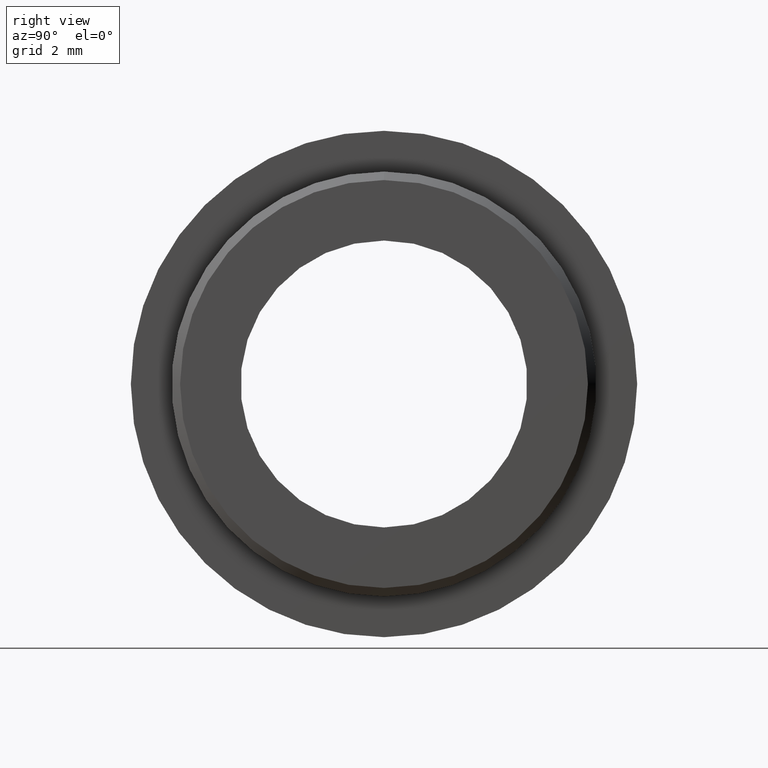
[diagram: clean part render]
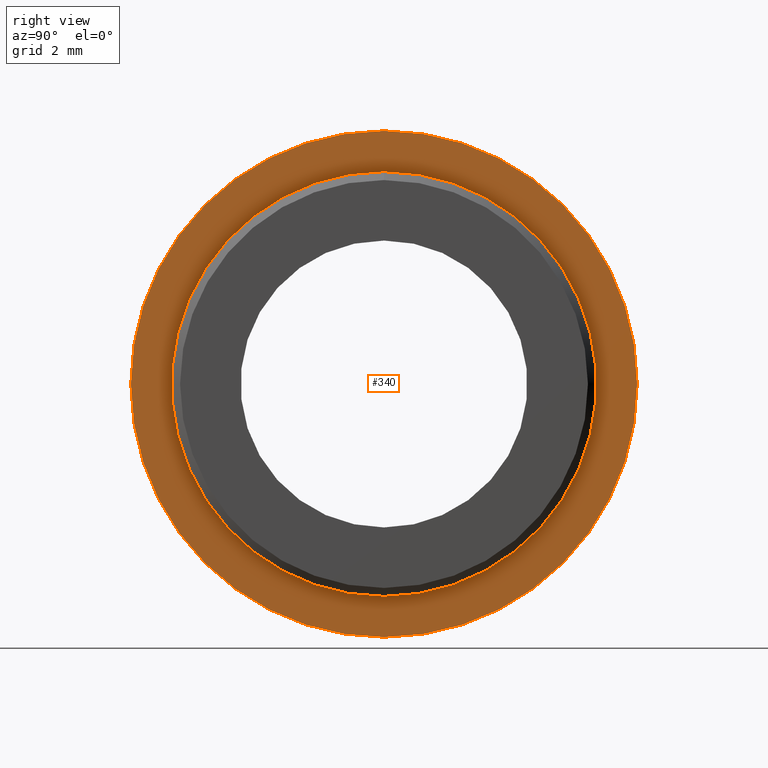
[diagram: same view with one face highlighted and labeled with its STEP entity id]
A machine part, right view. The second image highlights one B-rep face of the part: STEP entity #340.
In plain terms, the highlighted planar face has unit normal (1, 0, 0).
Its self-contained STEP definition (entity closure, byte-faithful):
#2 = EDGE_CURVE ( 'NONE', #653, #156, #154, .T. ) ;
#5 = CARTESIAN_POINT ( 'NONE',  ( 4.000000000000000000, 0.0000000000000000000, 0.0000000000000000000 ) ) ;
#31 = EDGE_CURVE ( 'NONE', #156, #653, #467, .T. ) ;
#45 = CARTESIAN_POINT ( 'NONE',  ( 4.000000000000000000, 0.0000000000000000000, 0.0000000000000000000 ) ) ;
#92 = AXIS2_PLACEMENT_3D ( 'NONE', #5, #392, #226 ) ;
#98 = ORIENTED_EDGE ( 'NONE', *, *, #2, .T. ) ;
#104 = CIRCLE ( 'NONE', #608, 7.500000000000000000 ) ;
#119 = ORIENTED_EDGE ( 'NONE', *, *, #602, .F. ) ;
#124 = CARTESIAN_POINT ( 'NONE',  ( 4.000000000000000000, 9.184850993605147900E-016, -7.500000000000000000 ) ) ;
#145 = DIRECTION ( 'NONE',  ( 0.0000000000000000000, 0.0000000000000000000, -1.000000000000000000 ) ) ;
#154 = CIRCLE ( 'NONE', #224, 9.000000000000000000 ) ;
#156 = VERTEX_POINT ( 'NONE', #177 ) ;
#157 = DIRECTION ( 'NONE',  ( 1.000000000000000000, 0.0000000000000000000, 0.0000000000000000000 ) ) ;
#161 = DIRECTION ( 'NONE',  ( 0.0000000000000000000, 0.0000000000000000000, -1.000000000000000000 ) ) ;
#177 = CARTESIAN_POINT ( 'NONE',  ( 4.000000000000000000, 0.0000000000000000000, 9.000000000000000000 ) ) ;
#190 = CARTESIAN_POINT ( 'NONE',  ( 4.000000000000000000, 0.0000000000000000000, 7.500000000000000000 ) ) ;
#224 = AXIS2_PLACEMENT_3D ( 'NONE', #609, #319, #145 ) ;
#226 = DIRECTION ( 'NONE',  ( 0.0000000000000000000, 0.0000000000000000000, -1.000000000000000000 ) ) ;
#260 = AXIS2_PLACEMENT_3D ( 'NONE', #378, #426, #616 ) ;
#271 = DIRECTION ( 'NONE',  ( 0.0000000000000000000, 0.0000000000000000000, -1.000000000000000000 ) ) ;
#274 = CARTESIAN_POINT ( 'NONE',  ( 4.000000000000000000, 0.0000000000000000000, 0.0000000000000000000 ) ) ;
#300 = FACE_OUTER_BOUND ( 'NONE', #447, .T. ) ;
#319 = DIRECTION ( 'NONE',  ( 1.000000000000000000, 0.0000000000000000000, 0.0000000000000000000 ) ) ;
#334 = CIRCLE ( 'NONE', #412, 7.500000000000000000 ) ;
#340 = ADVANCED_FACE ( 'NONE', ( #505, #300 ), #363, .T. ) ;
#363 = PLANE ( 'NONE',  #92 ) ;
#378 = CARTESIAN_POINT ( 'NONE',  ( 4.000000000000000000, 0.0000000000000000000, 0.0000000000000000000 ) ) ;
#392 = DIRECTION ( 'NONE',  ( 1.000000000000000000, 0.0000000000000000000, 0.0000000000000000000 ) ) ;
#401 = DIRECTION ( 'NONE',  ( 1.000000000000000000, 0.0000000000000000000, 0.0000000000000000000 ) ) ;
#412 = AXIS2_PLACEMENT_3D ( 'NONE', #274, #157, #271 ) ;
#426 = DIRECTION ( 'NONE',  ( 1.000000000000000000, 0.0000000000000000000, 0.0000000000000000000 ) ) ;
#447 = EDGE_LOOP ( 'NONE', ( #650, #98 ) ) ;
#467 = CIRCLE ( 'NONE', #260, 9.000000000000000000 ) ;
#505 = FACE_BOUND ( 'NONE', #682, .T. ) ;
#532 = VERTEX_POINT ( 'NONE', #124 ) ;
#560 = ORIENTED_EDGE ( 'NONE', *, *, #635, .F. ) ;
#574 = CARTESIAN_POINT ( 'NONE',  ( 4.000000000000000000, 1.102182119232617700E-015, -9.000000000000000000 ) ) ;
#602 = EDGE_CURVE ( 'NONE', #532, #693, #334, .T. ) ;
#608 = AXIS2_PLACEMENT_3D ( 'NONE', #45, #401, #161 ) ;
#609 = CARTESIAN_POINT ( 'NONE',  ( 4.000000000000000000, 0.0000000000000000000, 0.0000000000000000000 ) ) ;
#616 = DIRECTION ( 'NONE',  ( 0.0000000000000000000, 0.0000000000000000000, -1.000000000000000000 ) ) ;
#635 = EDGE_CURVE ( 'NONE', #693, #532, #104, .T. ) ;
#650 = ORIENTED_EDGE ( 'NONE', *, *, #31, .T. ) ;
#653 = VERTEX_POINT ( 'NONE', #574 ) ;
#682 = EDGE_LOOP ( 'NONE', ( #560, #119 ) ) ;
#693 = VERTEX_POINT ( 'NONE', #190 ) ;